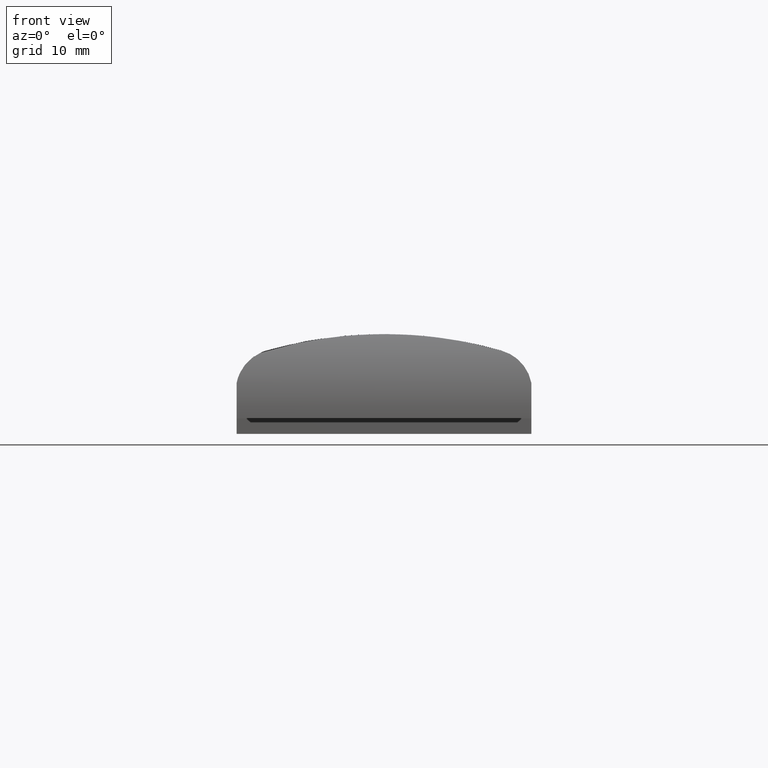
[diagram: clean part render]
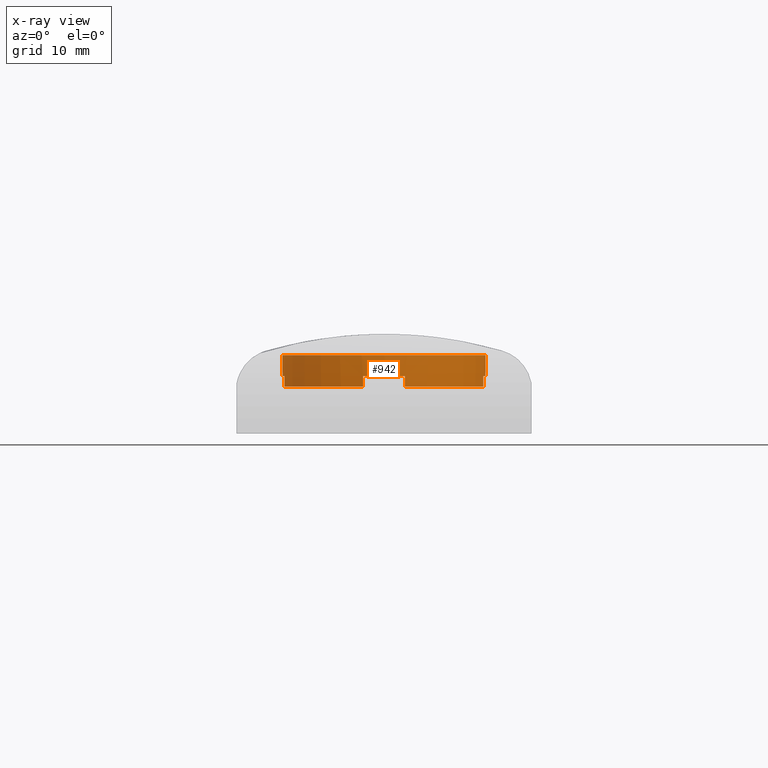
[diagram: x-ray — body ghosted, one internal face saturated and labeled with its STEP entity id]
A machine part, front view, then the same camera in x-ray: the body is ghosted and one INTERNAL B-rep face — a face not visible from any outside direction — is saturated and labeled: STEP entity #942.
In plain terms, the highlighted cylindrical surface (bore or boss wall) has radius 9.65 mm, axis along (0, 0, -1).
Its self-contained STEP definition (entity closure, byte-faithful):
#632=CARTESIAN_POINT('',(0.0,26.850510516013287,6.000000000000906));
#633=VERTEX_POINT('',#632);
#634=CARTESIAN_POINT('',(0.0,46.150510516013355,6.000000000000906));
#635=VERTEX_POINT('',#634);
#636=CARTESIAN_POINT('',(0.0,36.500510516013321,6.000000000000906));
#637=DIRECTION('',(1.224647E-016,0.0,-1.0));
#638=DIRECTION('',(0.0,-1.0,0.0));
#639=AXIS2_PLACEMENT_3D('',#636,#637,#638);
#640=CIRCLE('',#639,9.650000000000034);
#641=EDGE_CURVE('',#633,#635,#640,.T.);
#643=CARTESIAN_POINT('',(0.0,36.500510516013321,6.000000000000906));
#644=DIRECTION('',(1.224647E-016,0.0,-1.0));
#645=DIRECTION('',(0.0,-1.0,0.0));
#646=AXIS2_PLACEMENT_3D('',#643,#644,#645);
#647=CIRCLE('',#646,9.650000000000034);
#648=EDGE_CURVE('',#635,#633,#647,.T.);
#678=CARTESIAN_POINT('',(-2.0,27.060039129477559,2.999999999999542));
#679=VERTEX_POINT('',#678);
#680=CARTESIAN_POINT('',(-9.423596864002775,34.422453215370808,2.999999999999542));
#681=VERTEX_POINT('',#680);
#682=CARTESIAN_POINT('',(0.0,36.500510516013321,2.999999999999542));
#683=DIRECTION('',(1.224647E-016,0.0,-1.0));
#684=DIRECTION('',(0.0,-1.0,0.0));
#685=AXIS2_PLACEMENT_3D('',#682,#683,#684);
#686=CIRCLE('',#685,9.650000000000034);
#687=EDGE_CURVE('',#679,#681,#686,.T.);
#731=CARTESIAN_POINT('',(2.0,27.060039129477559,2.999999999999542));
#732=VERTEX_POINT('',#731);
#739=CARTESIAN_POINT('',(9.423596864002775,34.422453215370808,2.999999999999542));
#740=VERTEX_POINT('',#739);
#741=CARTESIAN_POINT('',(0.0,36.500510516013321,2.999999999999542));
#742=DIRECTION('',(1.224647E-016,0.0,-1.0));
#743=DIRECTION('',(0.0,-1.0,0.0));
#744=AXIS2_PLACEMENT_3D('',#741,#742,#743);
#745=CIRCLE('',#744,9.650000000000034);
#746=EDGE_CURVE('',#740,#732,#745,.T.);
#762=CARTESIAN_POINT('',(9.456671521227236,38.422453215370808,2.999999999999542));
#763=VERTEX_POINT('',#762);
#770=CARTESIAN_POINT('',(2.0,45.940981902549083,2.999999999999542));
#771=VERTEX_POINT('',#770);
#772=CARTESIAN_POINT('',(0.0,36.500510516013321,2.999999999999542));
#773=DIRECTION('',(1.224647E-016,0.0,-1.0));
#774=DIRECTION('',(0.0,-1.0,0.0));
#775=AXIS2_PLACEMENT_3D('',#772,#773,#774);
#776=CIRCLE('',#775,9.650000000000034);
#777=EDGE_CURVE('',#771,#763,#776,.T.);
#794=CARTESIAN_POINT('',(-9.456671521227236,38.422453215370808,2.999999999999542));
#795=VERTEX_POINT('',#794);
#803=CARTESIAN_POINT('',(-2.0,45.940981902549083,2.999999999999542));
#804=VERTEX_POINT('',#803);
#811=CARTESIAN_POINT('',(0.0,36.500510516013321,2.999999999999542));
#812=DIRECTION('',(1.224647E-016,0.0,-1.0));
#813=DIRECTION('',(0.0,-1.0,0.0));
#814=AXIS2_PLACEMENT_3D('',#811,#812,#813);
#815=CIRCLE('',#814,9.650000000000034);
#816=EDGE_CURVE('',#795,#804,#815,.T.);
#821=CARTESIAN_POINT('',(0.0,36.500510516013321,2.999999999999542));
#822=DIRECTION('',(1.224647E-016,0.0,-1.0));
#823=DIRECTION('',(0.0,-1.0,0.0));
#824=AXIS2_PLACEMENT_3D('',#821,#822,#823);
#825=CYLINDRICAL_SURFACE('',#824,9.650000000000034);
#826=CARTESIAN_POINT('',(-9.423596864002775,34.422453215370808,3.999999999999996));
#827=VERTEX_POINT('',#826);
#828=CARTESIAN_POINT('',(-9.423596864002775,34.422453215370808,2.999999999999542));
#829=DIRECTION('',(0.0,0.0,1.0));
#830=VECTOR('',#829,1.000000000000455);
#831=LINE('',#828,#830);
#832=EDGE_CURVE('',#681,#827,#831,.T.);
#833=ORIENTED_EDGE('',*,*,#832,.T.);
#834=CARTESIAN_POINT('',(-9.456671521227236,38.422453215370808,3.999999999999996));
#835=VERTEX_POINT('',#834);
#836=CARTESIAN_POINT('',(0.0,36.500510516013321,3.999999999999996));
#837=DIRECTION('',(1.224647E-016,0.0,-1.0));
#838=DIRECTION('',(0.0,-1.0,0.0));
#839=AXIS2_PLACEMENT_3D('',#836,#837,#838);
#840=CIRCLE('',#839,9.650000000000034);
#841=EDGE_CURVE('',#827,#835,#840,.T.);
#842=ORIENTED_EDGE('',*,*,#841,.T.);
#843=CARTESIAN_POINT('',(-9.456671521227236,38.422453215370808,3.999999999999996));
#844=DIRECTION('',(0.0,0.0,-1.0));
#845=VECTOR('',#844,1.000000000000455);
#846=LINE('',#843,#845);
#847=EDGE_CURVE('',#835,#795,#846,.T.);
#848=ORIENTED_EDGE('',*,*,#847,.T.);
#849=ORIENTED_EDGE('',*,*,#816,.T.);
#850=CARTESIAN_POINT('',(-2.0,45.940981902549083,3.999999999999996));
#851=VERTEX_POINT('',#850);
#852=CARTESIAN_POINT('',(-2.0,45.940981902549083,2.999999999999542));
#853=DIRECTION('',(0.0,0.0,1.0));
#854=VECTOR('',#853,1.000000000000455);
#855=LINE('',#852,#854);
#856=EDGE_CURVE('',#804,#851,#855,.T.);
#857=ORIENTED_EDGE('',*,*,#856,.T.);
#858=CARTESIAN_POINT('',(2.0,45.940981902549083,4.000000000000004));
#859=VERTEX_POINT('',#858);
#860=CARTESIAN_POINT('',(0.0,36.500510516013321,4.0));
#861=DIRECTION('',(1.224647E-016,0.0,-1.0));
#862=DIRECTION('',(0.0,-1.0,0.0));
#863=AXIS2_PLACEMENT_3D('',#860,#861,#862);
#864=CIRCLE('',#863,9.650000000000034);
#865=EDGE_CURVE('',#851,#859,#864,.T.);
#866=ORIENTED_EDGE('',*,*,#865,.T.);
#867=CARTESIAN_POINT('',(2.000000000000000,45.940981902549083,4.000000000000004));
#868=DIRECTION('',(0.0,0.0,-1.0));
#869=VECTOR('',#868,1.000000000000462);
#870=LINE('',#867,#869);
#871=EDGE_CURVE('',#859,#771,#870,.T.);
#872=ORIENTED_EDGE('',*,*,#871,.T.);
#873=ORIENTED_EDGE('',*,*,#777,.T.);
#874=CARTESIAN_POINT('',(9.456671521227236,38.422453215370808,4.0));
#875=VERTEX_POINT('',#874);
#876=CARTESIAN_POINT('',(9.456671521227236,38.422453215370808,2.999999999999542));
#877=DIRECTION('',(0.0,0.0,1.0));
#878=VECTOR('',#877,1.000000000000458);
#879=LINE('',#876,#878);
#880=EDGE_CURVE('',#763,#875,#879,.T.);
#881=ORIENTED_EDGE('',*,*,#880,.T.);
#882=CARTESIAN_POINT('',(9.423596864002775,34.422453215370808,4.0));
#883=VERTEX_POINT('',#882);
#884=CARTESIAN_POINT('',(0.0,36.500510516013321,3.999999999999996));
#885=DIRECTION('',(1.224647E-016,0.0,-1.0));
#886=DIRECTION('',(0.0,-1.0,0.0));
#887=AXIS2_PLACEMENT_3D('',#884,#885,#886);
#888=CIRCLE('',#887,9.650000000000034);
#889=EDGE_CURVE('',#875,#883,#888,.T.);
#890=ORIENTED_EDGE('',*,*,#889,.T.);
#891=CARTESIAN_POINT('',(9.423596864002775,34.422453215370808,4.0));
#892=DIRECTION('',(0.0,0.0,-1.0));
#893=VECTOR('',#892,1.000000000000458);
#894=LINE('',#891,#893);
#895=EDGE_CURVE('',#883,#740,#894,.T.);
#896=ORIENTED_EDGE('',*,*,#895,.T.);
#897=ORIENTED_EDGE('',*,*,#746,.T.);
#898=CARTESIAN_POINT('',(2.0,27.060039129477559,4.000000000000004));
#899=VERTEX_POINT('',#898);
#900=CARTESIAN_POINT('',(2.0,27.060039129477559,2.999999999999542));
#901=DIRECTION('',(0.0,0.0,1.0));
#902=VECTOR('',#901,1.000000000000462);
#903=LINE('',#900,#902);
#904=EDGE_CURVE('',#732,#899,#903,.T.);
#905=ORIENTED_EDGE('',*,*,#904,.T.);
#906=CARTESIAN_POINT('',(0.0,26.850510516013287,4.0));
#907=VERTEX_POINT('',#906);
#908=CARTESIAN_POINT('',(0.0,36.500510516013321,4.0));
#909=DIRECTION('',(1.224647E-016,0.0,-1.0));
#910=DIRECTION('',(0.0,-1.0,0.0));
#911=AXIS2_PLACEMENT_3D('',#908,#909,#910);
#912=CIRCLE('',#911,9.650000000000034);
#913=EDGE_CURVE('',#899,#907,#912,.T.);
#914=ORIENTED_EDGE('',*,*,#913,.T.);
#915=CARTESIAN_POINT('',(-1.224647E-016,26.850510516013287,4.0));
#916=DIRECTION('',(0.0,0.0,1.0));
#917=VECTOR('',#916,2.000000000000906);
#918=LINE('',#915,#917);
#919=EDGE_CURVE('',#907,#633,#918,.T.);
#920=ORIENTED_EDGE('',*,*,#919,.T.);
#921=ORIENTED_EDGE('',*,*,#648,.F.);
#922=ORIENTED_EDGE('',*,*,#641,.F.);
#923=ORIENTED_EDGE('',*,*,#919,.F.);
#924=CARTESIAN_POINT('',(-2.0,27.060039129477559,3.999999999999996));
#925=VERTEX_POINT('',#924);
#926=CARTESIAN_POINT('',(0.0,36.500510516013321,4.0));
#927=DIRECTION('',(1.224647E-016,0.0,-1.0));
#928=DIRECTION('',(0.0,-1.0,0.0));
#929=AXIS2_PLACEMENT_3D('',#926,#927,#928);
#930=CIRCLE('',#929,9.650000000000034);
#931=EDGE_CURVE('',#907,#925,#930,.T.);
#932=ORIENTED_EDGE('',*,*,#931,.T.);
#933=CARTESIAN_POINT('',(-2.0,27.060039129477559,3.999999999999996));
#934=DIRECTION('',(0.0,0.0,-1.0));
#935=VECTOR('',#934,1.000000000000455);
#936=LINE('',#933,#935);
#937=EDGE_CURVE('',#925,#679,#936,.T.);
#938=ORIENTED_EDGE('',*,*,#937,.T.);
#939=ORIENTED_EDGE('',*,*,#687,.T.);
#940=EDGE_LOOP('',(#833,#842,#848,#849,#857,#866,#872,#873,#881,#890,#896,#897,#905,#914,#920,#921,#922,#923,#932,#938,#939));
#941=FACE_OUTER_BOUND('',#940,.T.);
#942=ADVANCED_FACE('',(#941),#825,.F.);